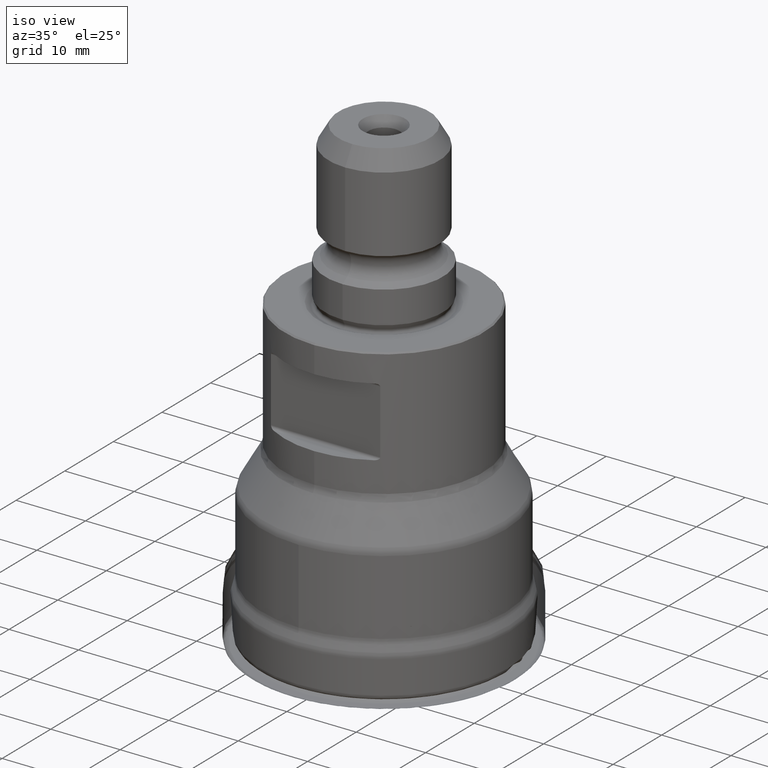
[diagram: clean part render]
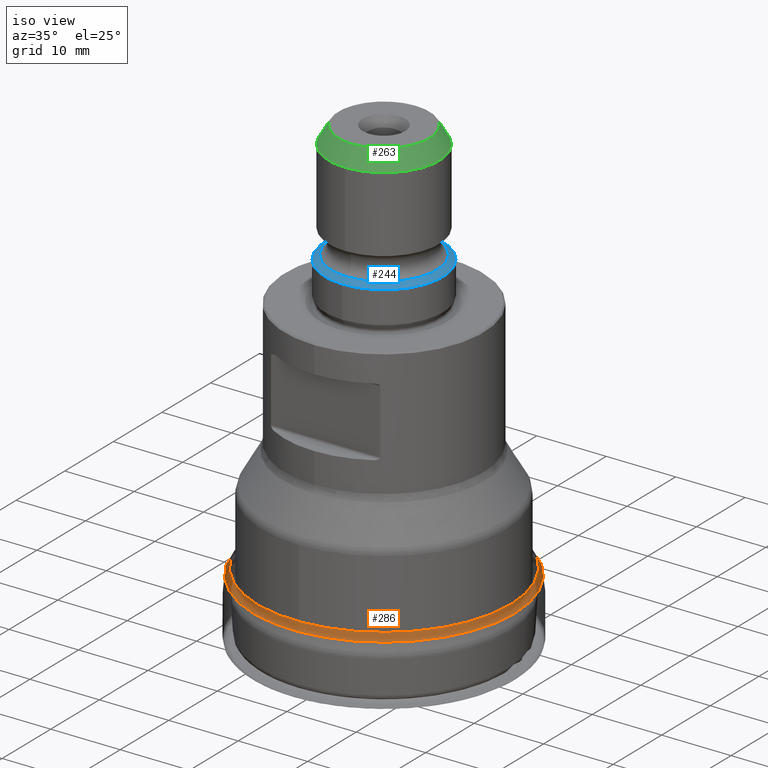
[diagram: same view with three faces highlighted in distinct colors, each labeled with its STEP entity id]
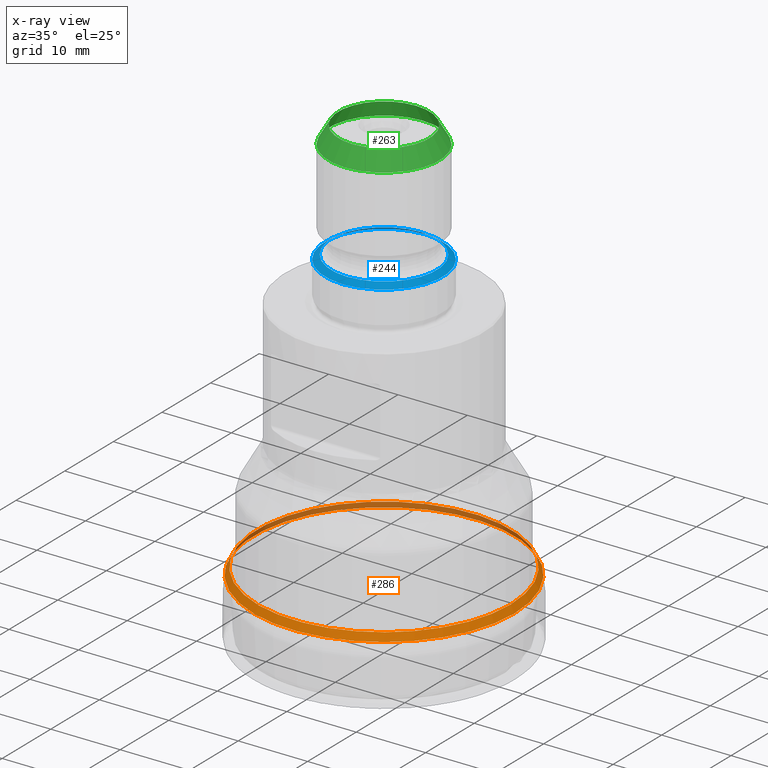
[diagram: x-ray of the same camera — body ghosted, the three highlighted faces saturated]
A machine part, iso view with three faces highlighted in distinct colors.
The next image is the same camera in x-ray (body ghosted, the three faces saturated) — at least one of them is partly hidden behind the body in this view.
Their STEP definitions:

[orange] entity #286 — the highlighted face is a SurfaceOfRevolution surface.
#120=SURFACE_OF_REVOLUTION('',#192,#144);
#144=AXIS1_PLACEMENT('',#1936,#1278);
#192=LINE('',#1935,#207);
#207=VECTOR('',#1277,1.1703510963815);
#286=ADVANCED_FACE('',(#398,#399),#120,.F.);
#398=FACE_BOUND('',#520,.T.);
#399=FACE_BOUND('',#521,.T.);
#520=EDGE_LOOP('',(#678));
#521=EDGE_LOOP('',(#679));
#678=ORIENTED_EDGE('',*,*,#842,.T.);
#679=ORIENTED_EDGE('',*,*,#843,.F.);
#763=VERTEX_POINT('',#1921);
#764=VERTEX_POINT('',#1934);
#842=EDGE_CURVE('',#763,#763,#901,.T.);
#843=EDGE_CURVE('',#764,#764,#902,.T.);
#901=CIRCLE('',#1056,18.2575145188931);
#902=CIRCLE('',#1057,18.8271832003165);
#1056=AXIS2_PLACEMENT_3D('',#1920,#1272,#1273);
#1057=AXIS2_PLACEMENT_3D('',#1933,#1275,#1276);
#1272=DIRECTION('',(0.,0.,1.));
#1273=DIRECTION('',(1.,0.,0.));
#1275=DIRECTION('',(0.,0.,1.));
#1276=DIRECTION('',(1.,0.,0.));
#1277=DIRECTION('',(-0.479525449974681,0.153867359479641,0.863932971076658));
#1278=DIRECTION('',(0.,0.,1.));
#1920=CARTESIAN_POINT('',(0.,0.,9.88819341982315));
#1921=CARTESIAN_POINT('',(18.2575145188931,0.,9.88819341982315));
#1933=CARTESIAN_POINT('',(0.,0.,8.87708840862667));
#1934=CARTESIAN_POINT('',(18.8271832003165,0.,8.87708840862667));
#1935=CARTESIAN_POINT('',(18.7986288657376,-1.03652304679564,8.87708840862667));
#1936=CARTESIAN_POINT('',(0.,0.,0.));

[blue] entity #244 — the highlighted conical surface has half-angle 55 deg.
#224=CONICAL_SURFACE('',#1004,7.60284712729791,55.0000000000003);
#244=ADVANCED_FACE('',(#334,#335),#224,.T.);
#334=FACE_BOUND('',#448,.T.);
#335=FACE_BOUND('',#449,.T.);
#448=EDGE_LOOP('',(#584));
#449=EDGE_LOOP('',(#585));
#584=ORIENTED_EDGE('',*,*,#810,.T.);
#585=ORIENTED_EDGE('',*,*,#811,.F.);
#737=VERTEX_POINT('',#1762);
#738=VERTEX_POINT('',#1765);
#810=EDGE_CURVE('',#737,#737,#877,.T.);
#811=EDGE_CURVE('',#738,#738,#878,.T.);
#877=CIRCLE('',#1001,8.5);
#878=CIRCLE('',#1003,7.60284712729791);
#1001=AXIS2_PLACEMENT_3D('',#1761,#1142,#1143);
#1003=AXIS2_PLACEMENT_3D('',#1764,#1146,#1147);
#1004=AXIS2_PLACEMENT_3D('',#1766,#1148,#1149);
#1142=DIRECTION('',(0.,1.17145536458252E-15,1.));
#1143=DIRECTION('',(0.,-1.,8.16340459283203E-16));
#1146=DIRECTION('',(0.,1.17145536458252E-15,1.));
#1147=DIRECTION('',(0.,-1.,9.12670449336438E-16));
#1148=DIRECTION('',(0.,-1.17145536458252E-15,-1.));
#1149=DIRECTION('',(0.,1.,-1.15507202281256E-15));
#1761=CARTESIAN_POINT('',(0.,5.85141954608971E-14,49.95));
#1762=CARTESIAN_POINT('',(0.,-8.49999999999994,49.95));
#1764=CARTESIAN_POINT('',(0.,5.92500957601769E-14,50.5781932043925));
#1765=CARTESIAN_POINT('',(0.,-7.60284712729785,50.5781932043925));
#1766=CARTESIAN_POINT('',(0.,5.92500957601769E-14,50.5781932043925));

[green] entity #263 — the highlighted conical surface has half-angle 30 deg.
#231=CONICAL_SURFACE('',#1033,6.53762432702594,30.);
#263=ADVANCED_FACE('',(#372,#373),#231,.T.);
#372=FACE_BOUND('',#484,.T.);
#373=FACE_BOUND('',#485,.T.);
#484=EDGE_LOOP('',(#620));
#485=EDGE_LOOP('',(#621));
#620=ORIENTED_EDGE('',*,*,#814,.F.);
#621=ORIENTED_EDGE('',*,*,#815,.F.);
#741=VERTEX_POINT('',#1774);
#742=VERTEX_POINT('',#1777);
#814=EDGE_CURVE('',#741,#741,#881,.T.);
#815=EDGE_CURVE('',#742,#742,#882,.T.);
#881=CIRCLE('',#1009,7.981);
#882=CIRCLE('',#1011,6.53762432702594);
#1009=AXIS2_PLACEMENT_3D('',#1773,#1158,#1159);
#1011=AXIS2_PLACEMENT_3D('',#1776,#1162,#1163);
#1033=AXIS2_PLACEMENT_3D('',#1807,#1206,#1207);
#1158=DIRECTION('',(0.,-1.17145536458252E-15,-1.));
#1159=DIRECTION('',(0.,-1.,1.73885325245138E-15));
#1162=DIRECTION('',(0.,1.17145536458252E-15,1.));
#1163=DIRECTION('',(0.,-1.,2.12275700065006E-15));
#1206=DIRECTION('',(0.,-1.17145536458252E-15,-1.));
#1207=DIRECTION('',(0.,1.,-1.11709119885816E-15));
#1773=CARTESIAN_POINT('',(0.,7.60860259296349E-14,64.95));
#1774=CARTESIAN_POINT('',(0.,-7.98099999999993,64.95));
#1776=CARTESIAN_POINT('',(0.,7.90146643410912E-14,67.45));
#1777=CARTESIAN_POINT('',(0.,-6.53762432702586,67.45));
#1807=CARTESIAN_POINT('',(0.,7.90146643410912E-14,67.45));